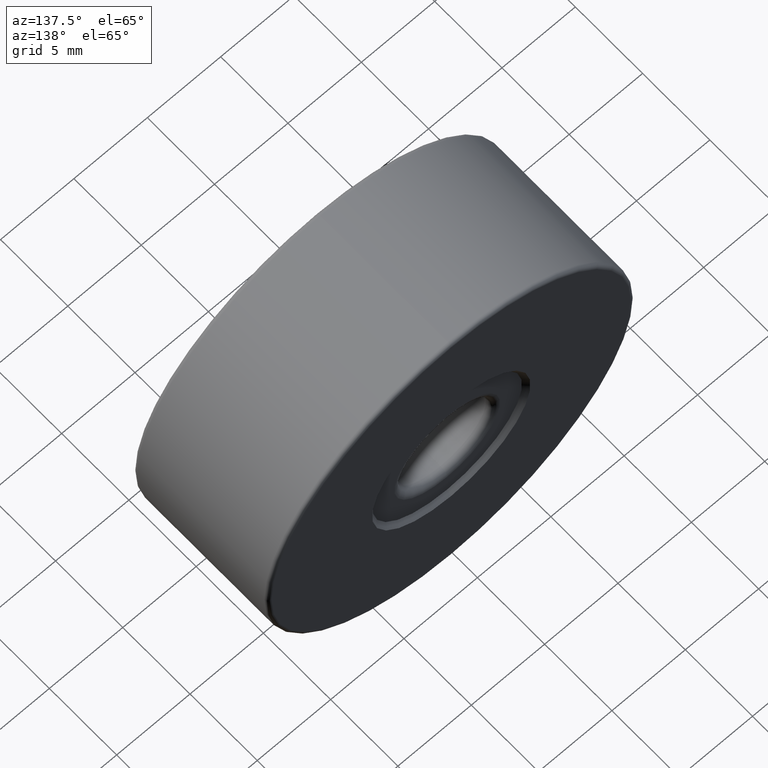
[diagram: clean part render]
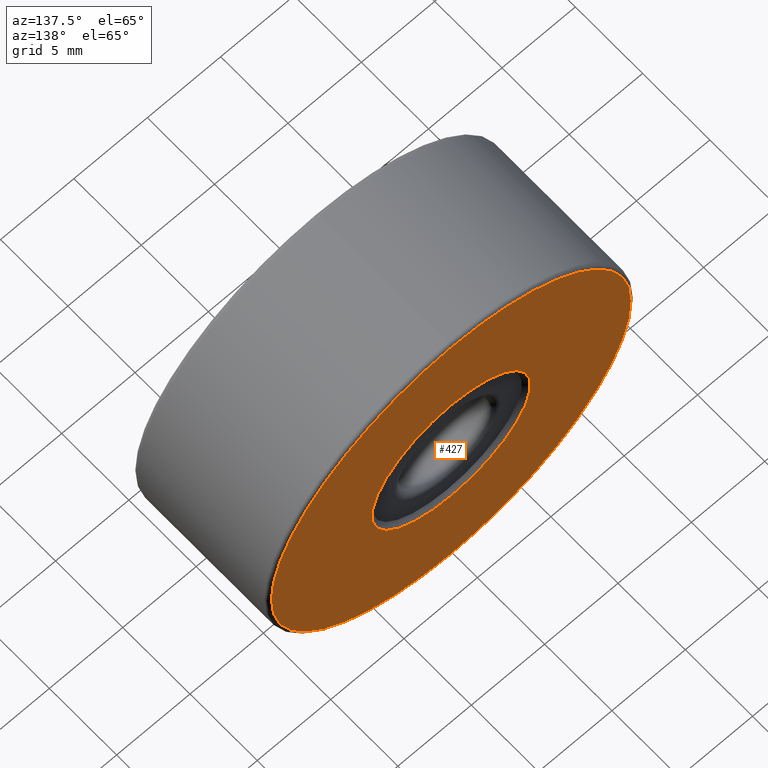
[diagram: same view with one face highlighted and labeled with its STEP entity id]
A machine part, auxiliary view. The second image highlights one B-rep face of the part: STEP entity #427.
In plain terms, the highlighted planar face has unit normal (0, 1, 0).
Its self-contained STEP definition (entity closure, byte-faithful):
#3 = FACE_OUTER_BOUND ( 'NONE', #410, .T. ) ;
#7 = EDGE_CURVE ( 'NONE', #604, #86, #145, .T. ) ;
#12 = CARTESIAN_POINT ( 'NONE',  ( -4.682026255059962949, 3.405024023001725020, 12.75000000000000178 ) ) ;
#72 = CARTESIAN_POINT ( 'NONE',  ( -4.682026255059963837, 3.405024023001725020, 19.59999999999999787 ) ) ;
#74 = CARTESIAN_POINT ( 'NONE',  ( -4.682026255059964726, 3.405024023001725020, 25.00000000000000000 ) ) ;
#86 = VERTEX_POINT ( 'NONE', #582 ) ;
#99 = EDGE_CURVE ( 'NONE', #86, #604, #311, .T. ) ;
#101 = PLANE ( 'NONE',  #313 ) ;
#142 = DIRECTION ( 'NONE',  ( 0.0000000000000000000, 0.0000000000000000000, 1.000000000000000000 ) ) ;
#145 = CIRCLE ( 'NONE', #354, 12.25000000000000355 ) ;
#174 = CIRCLE ( 'NONE', #602, 5.400000000000002132 ) ;
#193 = FACE_BOUND ( 'NONE', #240, .T. ) ;
#200 = DIRECTION ( 'NONE',  ( -0.0000000000000000000, -1.000000000000000000, -0.0000000000000000000 ) ) ;
#227 = VERTEX_POINT ( 'NONE', #392 ) ;
#234 = CIRCLE ( 'NONE', #535, 5.400000000000002132 ) ;
#240 = EDGE_LOOP ( 'NONE', ( #373, #349 ) ) ;
#247 = CARTESIAN_POINT ( 'NONE',  ( -4.682026255059964726, 3.405024023001725020, 25.00000000000000000 ) ) ;
#265 = DIRECTION ( 'NONE',  ( 0.0000000000000000000, 1.000000000000000000, 0.0000000000000000000 ) ) ;
#273 = ORIENTED_EDGE ( 'NONE', *, *, #7, .T. ) ;
#292 = DIRECTION ( 'NONE',  ( 0.0000000000000000000, 1.000000000000000000, 0.0000000000000000000 ) ) ;
#311 = CIRCLE ( 'NONE', #609, 12.25000000000000355 ) ;
#313 = AXIS2_PLACEMENT_3D ( 'NONE', #573, #292, #487 ) ;
#334 = CARTESIAN_POINT ( 'NONE',  ( -4.682026255059964726, 3.405024023001725020, 25.00000000000000000 ) ) ;
#349 = ORIENTED_EDGE ( 'NONE', *, *, #436, .T. ) ;
#354 = AXIS2_PLACEMENT_3D ( 'NONE', #74, #265, #142 ) ;
#373 = ORIENTED_EDGE ( 'NONE', *, *, #564, .T. ) ;
#392 = CARTESIAN_POINT ( 'NONE',  ( -4.682026255059964726, 3.405024023001725020, 30.40000000000000213 ) ) ;
#394 = DIRECTION ( 'NONE',  ( -0.0000000000000000000, -1.000000000000000000, -0.0000000000000000000 ) ) ;
#410 = EDGE_LOOP ( 'NONE', ( #509, #273 ) ) ;
#427 = ADVANCED_FACE ( 'NONE', ( #3, #193 ), #101, .T. ) ;
#433 = DIRECTION ( 'NONE',  ( 0.0000000000000000000, 1.000000000000000000, 0.0000000000000000000 ) ) ;
#436 = EDGE_CURVE ( 'NONE', #504, #227, #234, .T. ) ;
#441 = DIRECTION ( 'NONE',  ( 0.0000000000000000000, 0.0000000000000000000, 1.000000000000000000 ) ) ;
#487 = DIRECTION ( 'NONE',  ( 0.0000000000000000000, -0.0000000000000000000, 1.000000000000000000 ) ) ;
#495 = CARTESIAN_POINT ( 'NONE',  ( -4.682026255059964726, 3.405024023001725020, 25.00000000000000000 ) ) ;
#504 = VERTEX_POINT ( 'NONE', #72 ) ;
#509 = ORIENTED_EDGE ( 'NONE', *, *, #99, .T. ) ;
#535 = AXIS2_PLACEMENT_3D ( 'NONE', #247, #200, #584 ) ;
#540 = DIRECTION ( 'NONE',  ( 0.0000000000000000000, 0.0000000000000000000, 1.000000000000000000 ) ) ;
#564 = EDGE_CURVE ( 'NONE', #227, #504, #174, .T. ) ;
#573 = CARTESIAN_POINT ( 'NONE',  ( -4.682026255059964726, 3.405024023001725020, 25.00000000000000000 ) ) ;
#582 = CARTESIAN_POINT ( 'NONE',  ( -4.682026255059964726, 3.405024023001725020, 37.25000000000000711 ) ) ;
#584 = DIRECTION ( 'NONE',  ( 0.0000000000000000000, 0.0000000000000000000, 1.000000000000000000 ) ) ;
#602 = AXIS2_PLACEMENT_3D ( 'NONE', #495, #394, #441 ) ;
#604 = VERTEX_POINT ( 'NONE', #12 ) ;
#609 = AXIS2_PLACEMENT_3D ( 'NONE', #334, #433, #540 ) ;